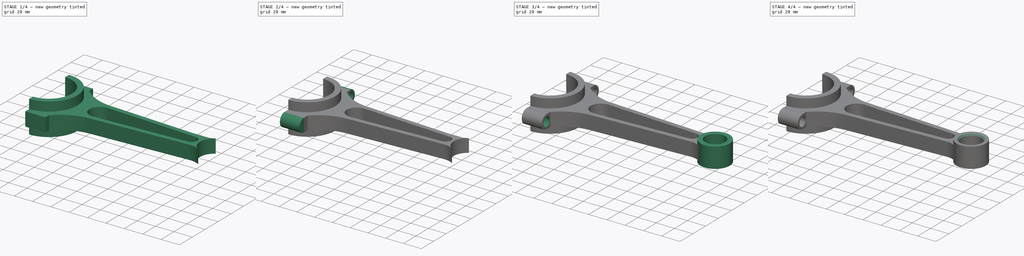
[diagram: build sequence overview — one tinted view per stage of 4, left to right]
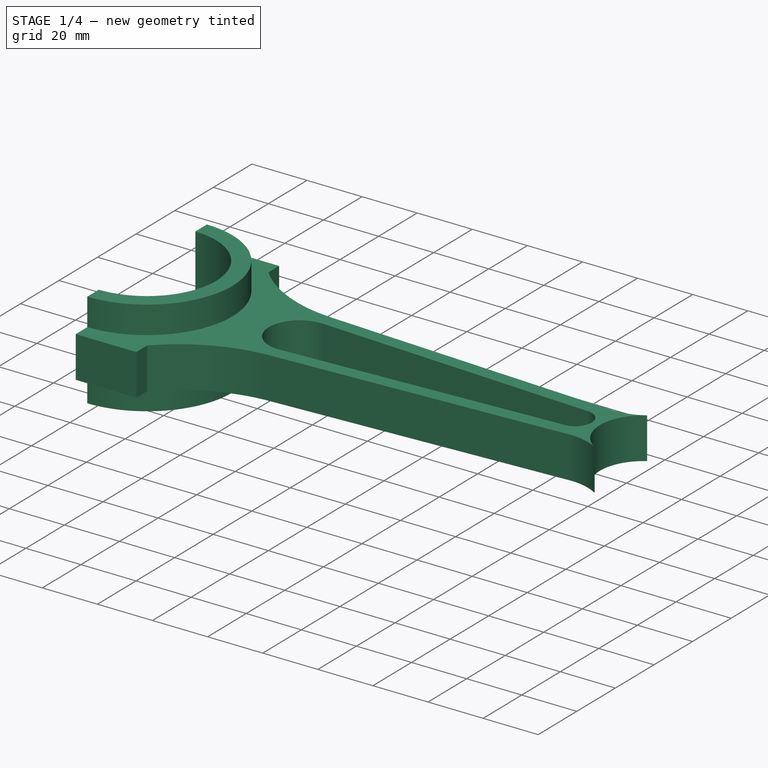
[diagram: stage 1 of 4 — iso view after this stage's code; geometry added in this stage tinted green]
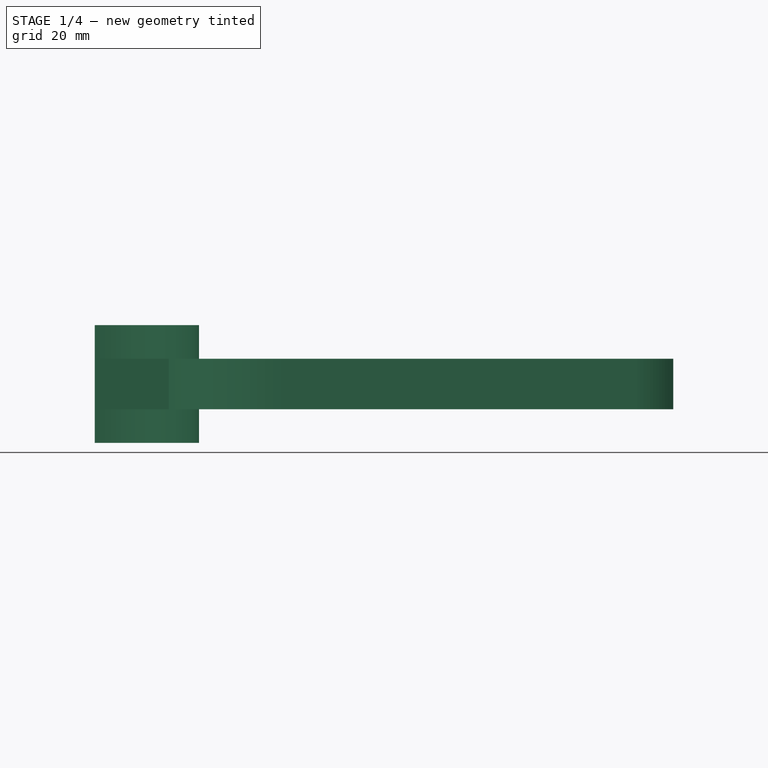
[diagram: stage 1 of 4 — front view after this stage's code; geometry added in this stage tinted green]
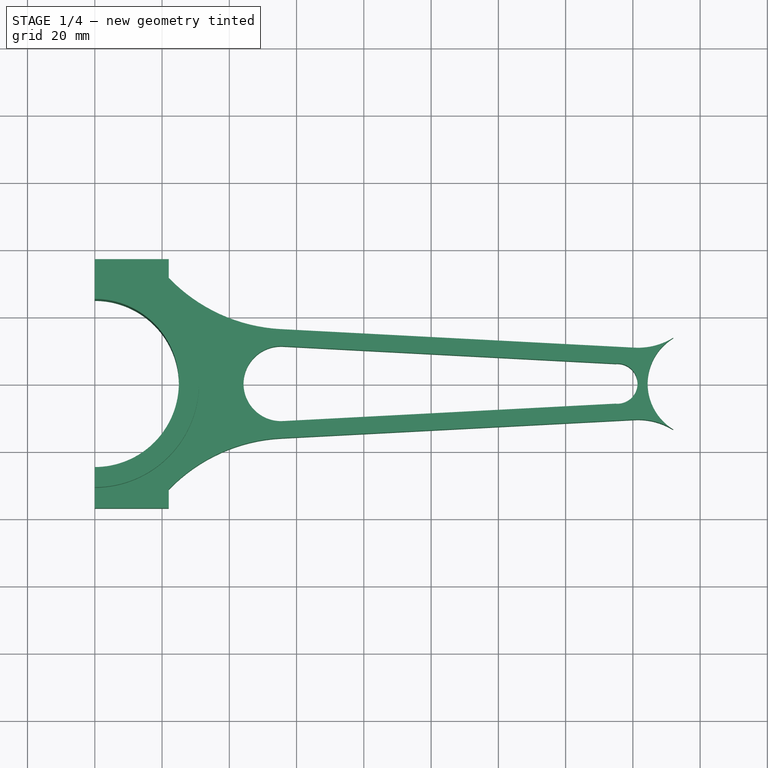
[diagram: stage 1 of 4 — top view after this stage's code; geometry added in this stage tinted green]
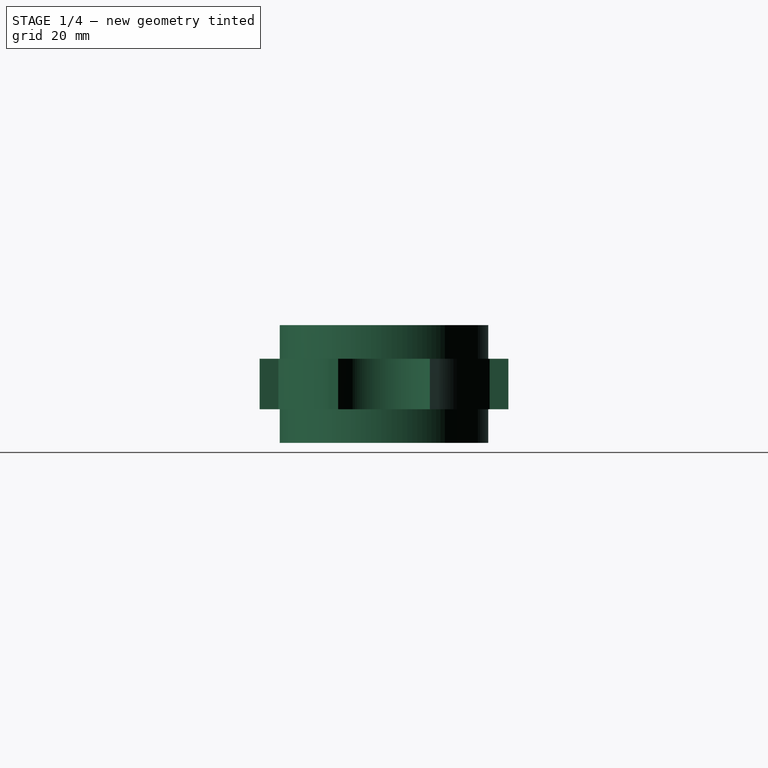
[diagram: stage 1 of 4 — right view after this stage's code; geometry added in this stage tinted green]
FCSTD DOCUMENT  (FreeCAD 0.18R4 (GitTag))
Label: ConnectingRod
License: All rights reserved
LicenseURL: http://en.wikipedia.org/wiki/All_rights_reserved
objects: Sketcher::SketchObject×7, PartDesign::Pad×4, PartDesign::Pocket×2, PartDesign::Chamfer×2, PartDesign::PolarPattern×1, PartDesign::Body×1
note: 23 computed .brp shape members not serialized (recipe doc carries the construction recipe); baked Part::Feature solids carry a one-line shape summary decoded from their .brp

FEATURE [Sketcher::SketchObject] CopySketch
  sketch-geometry (18):
    g0: LineSegment StartX=4.56e-14 StartY=31 StartZ=0 EndX=4.56e-14 EndY=37 EndZ=0
    g1: LineSegment StartX=4.56e-14 StartY=37 StartZ=0 EndX=22 EndY=37 EndZ=0
    g2: LineSegment StartX=22 StartY=37 StartZ=0 EndX=22 EndY=31.4213 EndZ=0
    g3: ArcOfCircle CenterX=58 CenterY=66.12 CenterZ=0 NormalX=0 NormalY=0 NormalZ=1 AngleXU=0 Radius=50 StartAngle=3.90859 EndAngle=4.66003
    g4: LineSegment StartX=4.56e-14 StartY=-31 StartZ=0 EndX=4.56e-14 EndY=-37 EndZ=0
    g5: LineSegment StartX=4.56e-14 StartY=-37 StartZ=0 EndX=22 EndY=-37 EndZ=0
    g6: LineSegment StartX=22 StartY=-37 StartZ=0 EndX=22 EndY=-31.4213 EndZ=0
    g7: ArcOfCircle CenterX=58 CenterY=-66.12 CenterZ=0 NormalX=0 NormalY=0 NormalZ=1 AngleXU=0 Radius=50 StartAngle=1.62316 EndAngle=2.3746
    g8: LineSegment StartX=55.3832 StartY=16.1885 StartZ=0 EndX=160.46 EndY=10.6817 EndZ=0
    g9: LineSegment StartX=55.3832 StartY=-16.1885 StartZ=0 EndX=160.46 EndY=-10.6817 EndZ=0
    g10: ArcOfCircle CenterX=180.383 CenterY=0 CenterZ=0 NormalX=0 NormalY=0 NormalZ=1 AngleXU=0 Radius=16 StartAngle=2.12274 EndAngle=4.16045
    g11: ArcOfCircle CenterX=161.507 CenterY=30.6543 CenterZ=0 NormalX=0 NormalY=0 NormalZ=1 AngleXU=0 Radius=20 StartAngle=4.66003 EndAngle=5.26433
    g12: ArcOfCircle CenterX=161.507 CenterY=-30.6543 CenterZ=0 NormalX=0 NormalY=0 NormalZ=1 AngleXU=0 Radius=20 StartAngle=1.01885 EndAngle=1.62316
    g13: ArcOfCircle CenterX=4.56e-14 CenterY=0 CenterZ=0 NormalX=0 NormalY=0 NormalZ=1 AngleXU=0 Radius=31 StartAngle=4.71239 EndAngle=7.85398
    g14: ArcOfCircle CenterX=155.383 CenterY=0 CenterZ=0 NormalX=0 NormalY=0 NormalZ=1 AngleXU=0 Radius=6 StartAngle=4.61488 EndAngle=7.95149
    g15: LineSegment StartX=55.9676 StartY=11.151 StartZ=0 EndX=154.799 EndY=5.9715 EndZ=0
    g16: LineSegment StartX=55.9676 StartY=-11.151 StartZ=0 EndX=154.799 EndY=-5.9715 EndZ=0
    g17: ArcOfCircle CenterX=55.3832 CenterY=0 CenterZ=0 NormalX=0 NormalY=0 NormalZ=1 AngleXU=0 Radius=11.1663 StartAngle=1.51844 EndAngle=4.76475
  constraints (55):
    c: Coincident(g0,g1)
    c: Coincident(g1,g2)
    c: Vertical(g0)
    c: Horizontal(g1)
    c: Distance(g0) = 6
    c: Radius(g3) = 50
    c: Coincident(g3,g2)
    c: DistanceY(g-1,g3) = 66.12
    c: DistanceX(g1,g1) = 22
    c: Coincident(g4,g5)
    c: Coincident(g5,g6)
    c: Vertical(g4)
    c: Vertical(g6)
    c: Horizontal(g5)
    c: DistanceY(g4,g4) = 6
    c: DistanceX(g5,g5) = 22
    c: Coincident(g7,g6)
    c: Symmetric(g3,g7,g-1)
    c: Angle(g8,g-1) = 0.0523599
    c: Tangent(g8,g3) = -1.5708
    c: Tangent(g7,g9) = 1.5708
    c: Symmetric(g7,g3,g-1)
    c: Radius(g10) = 16
    c: DistanceX(g3,g10) = 125
    c: PointOnObject(g10,g-1)
    c: Radius(g11) = 20
    c: Tangent(g11,g10)
    c: Tangent(g8,g11) = -1.5708
    c: Vertical(g9,g8)
    c: Tangent(g12,g10)
    c: Tangent(g12,g9) = 1.5708
    c: Coincident(g10,g11)
    c: Coincident(g10,g12)
    c: Vertical(g13,g13)
    c: Vertical(g13,g13)
    c: Radius(g13) = 31
    c: PointOnObject(g13,g-1)
    c: Coincident(g13,g0)
    c: Coincident(g13,g4)
    c: DistanceX(g0,g3) = 58
    c: Vertical(g2)
    c: PointOnObject(g13,g-2)
    c: DistanceX(g7,g14) = 100
    c: Radius(g14) = 6
    c: PointOnObject(g14,g-1)
    c: Parallel(g15,g8)
    c: Distance(g15,g8) = 5
    c: Coincident(g15,g14)
    c: Parallel(g16,g9)
    c: Coincident(g16,g14)
    c: Distance(g14,g9) = 5
    c: PointOnObject(g17,g-1)
    c: Vertical(g17,g3)
    c: Tangent(g15,g17) = 1.5708
    c: Coincident(g16,g17)
FEATURE [PartDesign::Pad] Pad
  Length = 15
  Length2 = 100
  Midplane = true
  Profile = -> CopySketch
  Type = 0
FEATURE [Sketcher::SketchObject] Sketch001
  MapMode = 5
  Support = -> [XY_Plane]
  sketch-geometry (4):
    g0: ArcOfCircle CenterX=-4.6e-15 CenterY=0 CenterZ=0 NormalX=0 NormalY=0 NormalZ=1 AngleXU=0 Radius=25 StartAngle=4.71239 EndAngle=7.85398
    g1: ArcOfCircle CenterX=-4.6e-15 CenterY=0 CenterZ=0 NormalX=0 NormalY=0 NormalZ=1 AngleXU=0 Radius=31 StartAngle=4.71239 EndAngle=7.85398
    g2: LineSegment StartX=-4.6e-15 StartY=31 StartZ=0 EndX=-4.6e-15 EndY=25 EndZ=0
    g3: LineSegment StartX=-4.6e-15 StartY=-25 StartZ=0 EndX=-4.6e-15 EndY=-31 EndZ=0
  constraints (12):
    c: Vertical(g0,g0)
    c: Vertical(g0,g0)
    c: Vertical(g1,g1)
    c: Vertical(g1,g1)
    c: Radius(g1) = 31
    c: Radius(g0) = 25
    c: Coincident(g1,g0)
    c: Coincident(g0,g2)
    c: Coincident(g2,g1)
    c: Coincident(g3,g0)
    c: Coincident(g3,g1)
    c: Coincident(g0,g-1)
FEATURE [PartDesign::Pad] Pad001
  BaseFeature = -> Pad
  Length = 35
  Length2 = 100
  Midplane = true
  Profile = -> Sketch001
  Type = 0
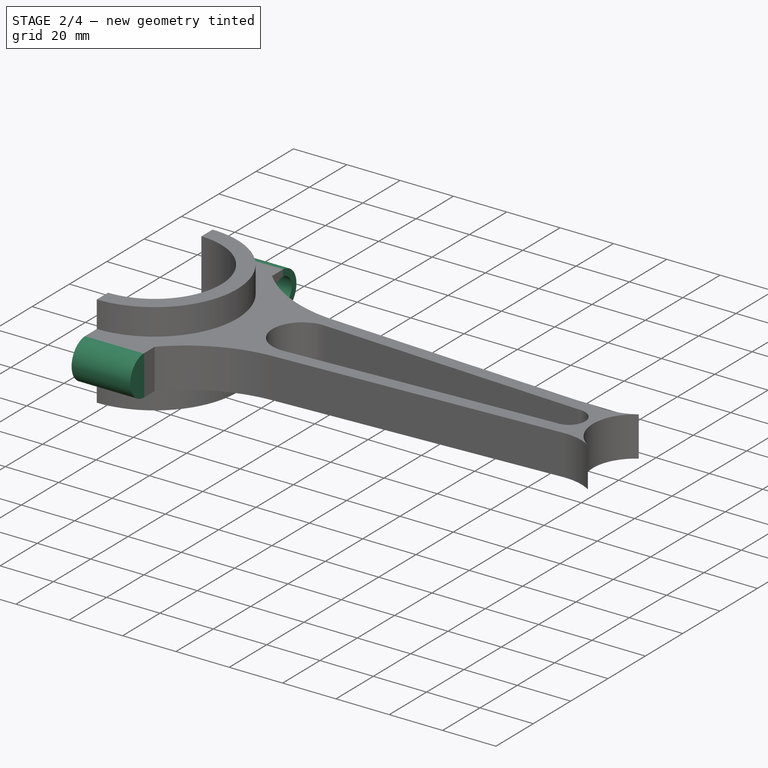
[diagram: stage 2 of 4 — iso view after this stage's code; geometry added in this stage tinted green]
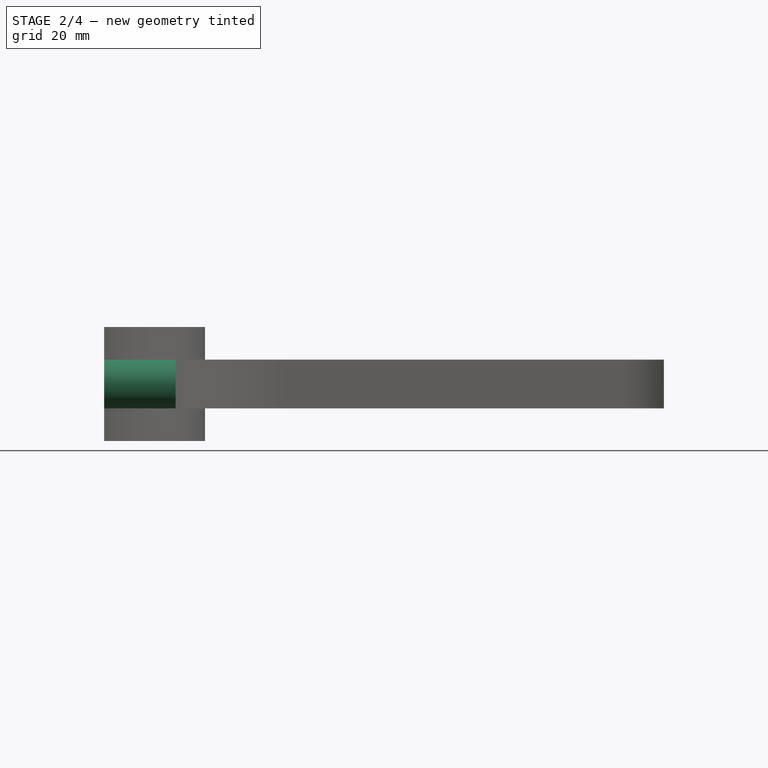
[diagram: stage 2 of 4 — front view after this stage's code; geometry added in this stage tinted green]
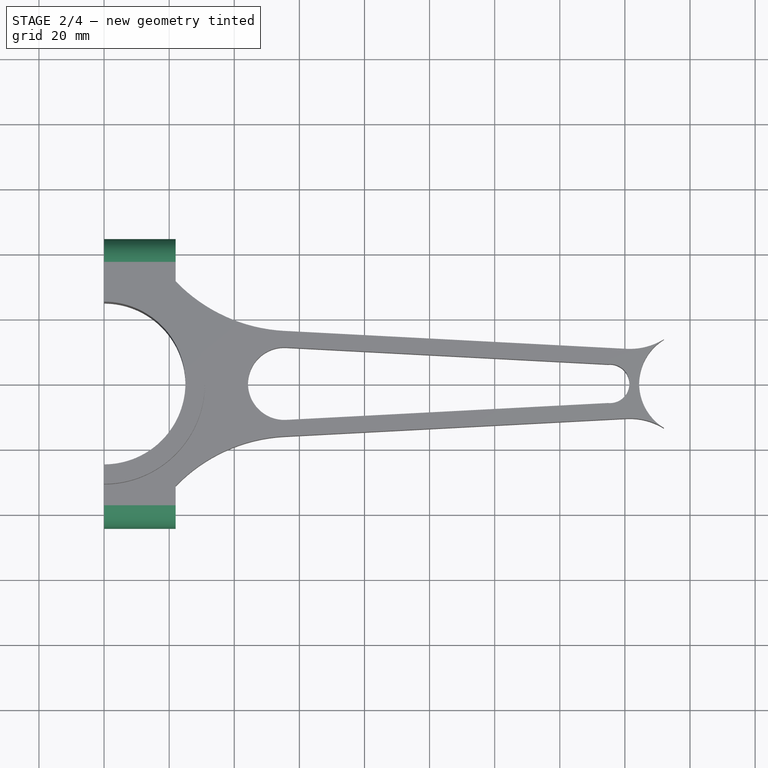
[diagram: stage 2 of 4 — top view after this stage's code; geometry added in this stage tinted green]
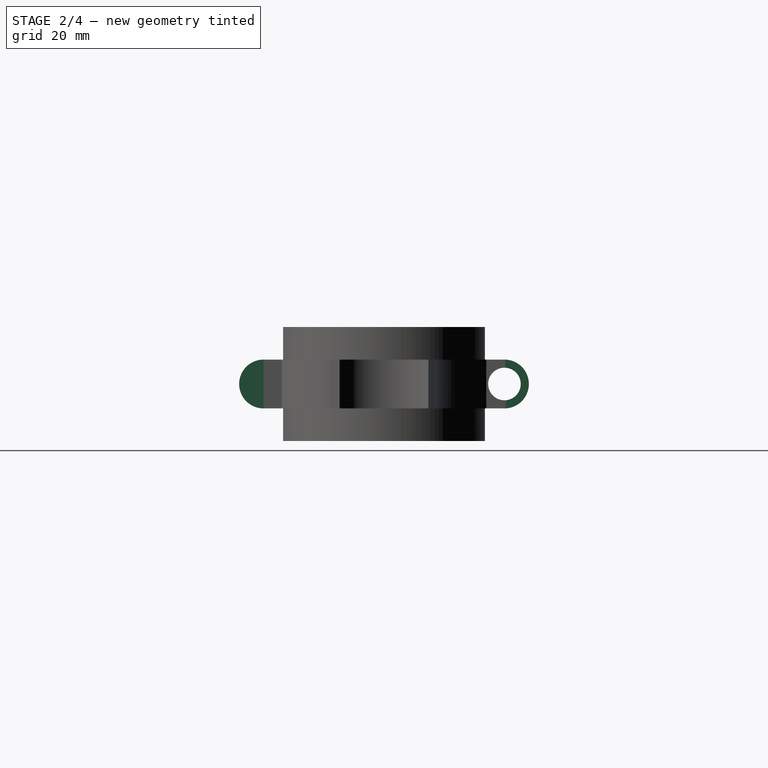
[diagram: stage 2 of 4 — right view after this stage's code; geometry added in this stage tinted green]
FEATURE [Sketcher::SketchObject] Sketch002
  MapMode = 5
  Support = -> [XY_Plane]
FEATURE [Sketcher::SketchObject] Sketch003
  MapMode = 5
  Placement = pos=(0,0,0) rot=(0.57735,0.57735,0.57735;2.0944rad)
  Support = -> [YZ_Plane]
  sketch-geometry (4):
    g0: ArcOfCircle CenterX=37 CenterY=0 CenterZ=0 NormalX=0 NormalY=0 NormalZ=1 AngleXU=0 Radius=7.5 StartAngle=4.71239 EndAngle=7.85398
    g1: LineSegment StartX=37 StartY=7.5 StartZ=0 EndX=37 EndY=-7.5 EndZ=0
    g2: ArcOfCircle CenterX=-37 CenterY=1.8e-15 CenterZ=0 NormalX=0 NormalY=0 NormalZ=1 AngleXU=0 Radius=7.5 StartAngle=1.5708 EndAngle=4.71239
    g3: LineSegment StartX=-37 StartY=7.5 StartZ=0 EndX=-37 EndY=-7.5 EndZ=0
  constraints (14):
    c: Vertical(g0,g0)
    c: Vertical(g0,g0)
    c: Coincident(g1,g0)
    c: Coincident(g1,g0)
    c: DistanceX(g-1,g0) = 37
    c: PointOnObject(g0,g-1)
    c: Radius(g0) = 7.5
    c: Vertical(g2,g2)
    c: Vertical(g2,g2)
    c: Coincident(g3,g2)
    c: Coincident(g3,g2)
    c: Radius(g2) = 7.5
    c: DistanceX(g2,g-1) = 37
    c: PointOnObject(g2,g-1)
FEATURE [PartDesign::Pad] Pad002
  BaseFeature = -> Pad001
  Length = 22
  Length2 = 100
  Profile = -> Sketch003
  Type = 0
FEATURE [Sketcher::SketchObject] Sketch
  MapMode = 5
  Placement = pos=(0,0,0) rot=(-0.57735,0.57735,0.57735;4.18879rad)
  Support = -> [Pad002]
  sketch-geometry (1):
    g0: Circle CenterX=-37 CenterY=0 CenterZ=0 NormalX=0 NormalY=0 NormalZ=1 AngleXU=0 Radius=5
  constraints (3):
    c: Radius(g0) = 5
    c: PointOnObject(g0,g-1)
    c: DistanceX(g0,g-1) = 37
FEATURE [PartDesign::Pocket] Pocket
  BaseFeature = -> Pad002
  Length = 22
  Length2 = 100
  Profile = -> Sketch
  Type = 0
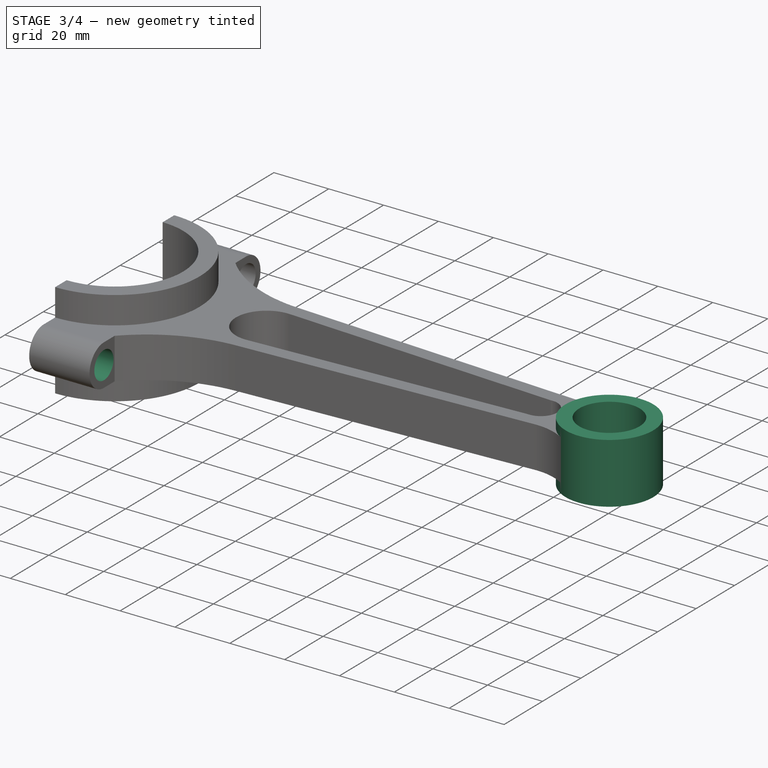
[diagram: stage 3 of 4 — iso view after this stage's code; geometry added in this stage tinted green]
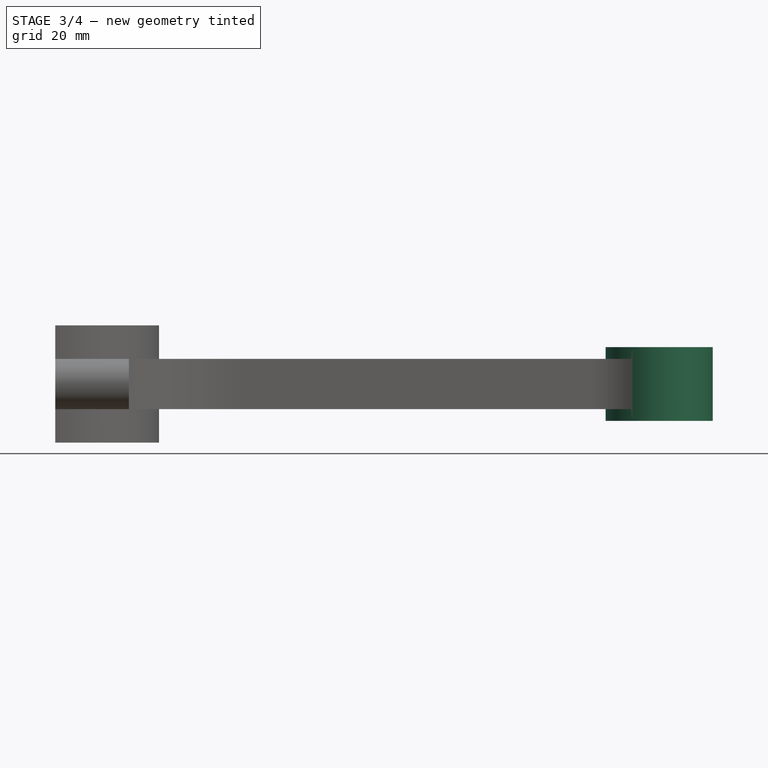
[diagram: stage 3 of 4 — front view after this stage's code; geometry added in this stage tinted green]
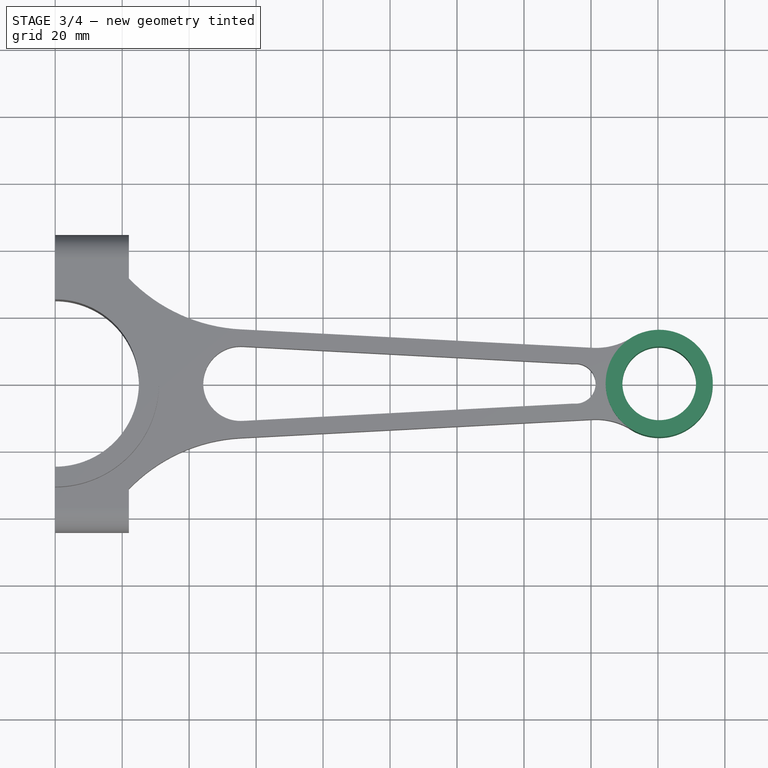
[diagram: stage 3 of 4 — top view after this stage's code; geometry added in this stage tinted green]
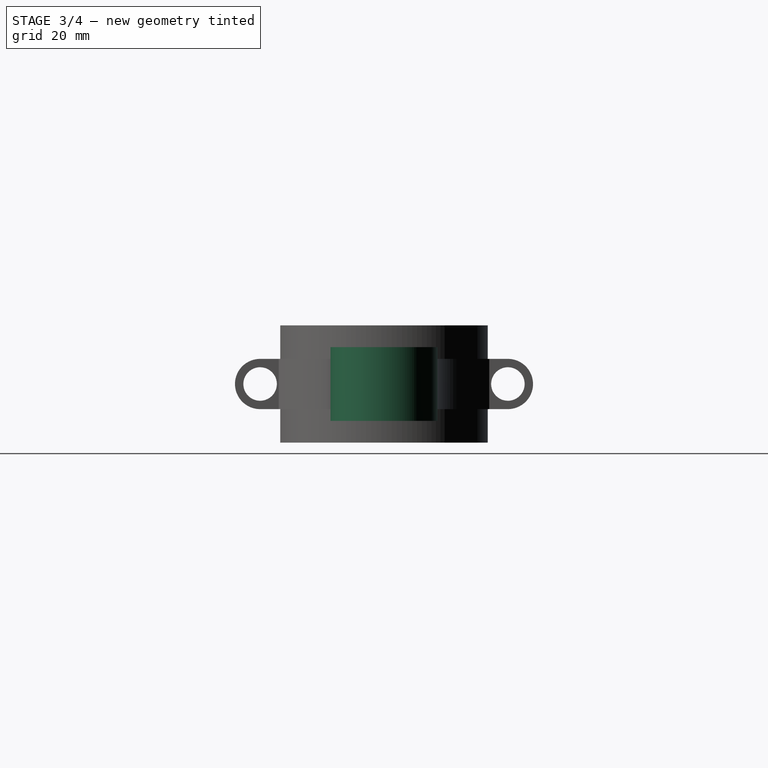
[diagram: stage 3 of 4 — right view after this stage's code; geometry added in this stage tinted green]
FEATURE [PartDesign::PolarPattern] PolarPattern
  Angle = 360
  Axis = -> Sketch [N_Axis]
  BaseFeature = -> Pocket
  Occurrences = 2
  Originals = -> [Pocket]
FEATURE [Sketcher::SketchObject] Sketch004
  MapMode = 5
  Support = -> [XY_Plane]
  sketch-geometry (1):
    g0: Circle CenterX=180.383 CenterY=0 CenterZ=0 NormalX=0 NormalY=0 NormalZ=1 AngleXU=0 Radius=16
  constraints (3):
    c: Radius(g0) = 16
    c: DistanceX(g-1,g0) = 180.383
    c: PointOnObject(g0,g-1)
FEATURE [PartDesign::Pad] Pad003
  BaseFeature = -> PolarPattern
  Length = 22
  Length2 = 100
  Midplane = true
  Profile = -> Sketch004
  Type = 0
FEATURE [Sketcher::SketchObject] Sketch005
  MapMode = 5
  Placement = pos=(0,0,11) rot=(0,0,1;0rad)
  Support = -> [Pad003]
  sketch-geometry (1):
    g0: Circle CenterX=180.383 CenterY=0 CenterZ=0 NormalX=0 NormalY=0 NormalZ=1 AngleXU=0 Radius=11
  constraints (3):
    c: Radius(g0) = 11
    c: DistanceX(g-1,g0) = 180.383
    c: PointOnObject(g0,g-1)
FEATURE [PartDesign::Pocket] Pocket001
  BaseFeature = -> Pad003
  Length = 22
  Length2 = 100
  Profile = -> Sketch005
  Type = 0
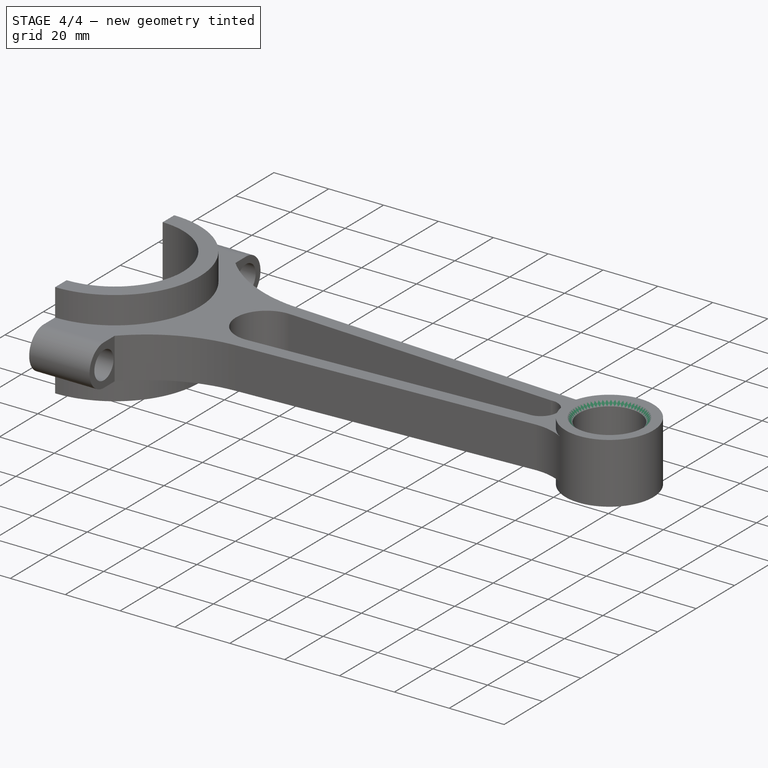
[diagram: stage 4 of 4 — iso view after this stage's code; geometry added in this stage tinted green]
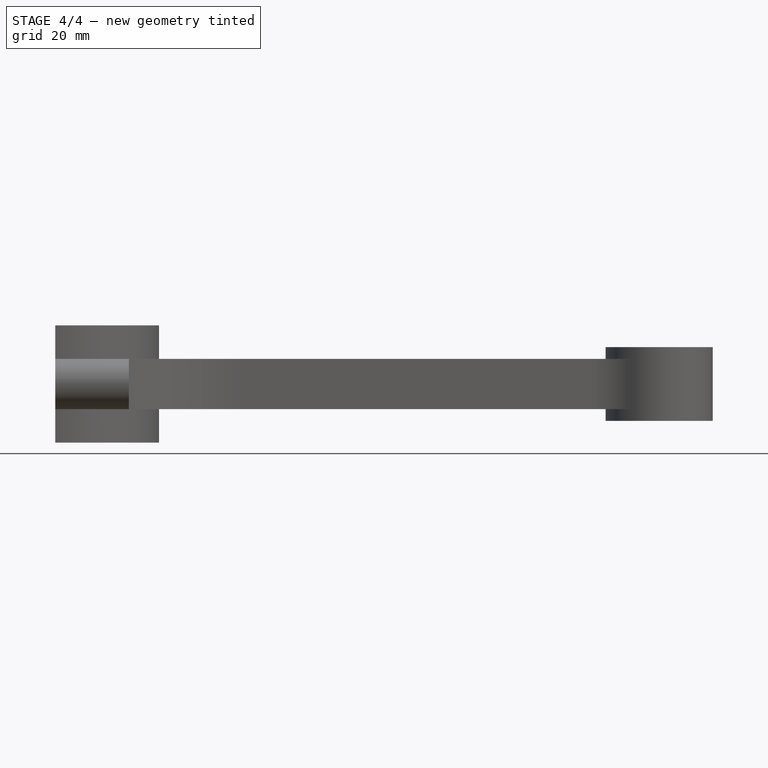
[diagram: stage 4 of 4 — front view after this stage's code; geometry added in this stage tinted green]
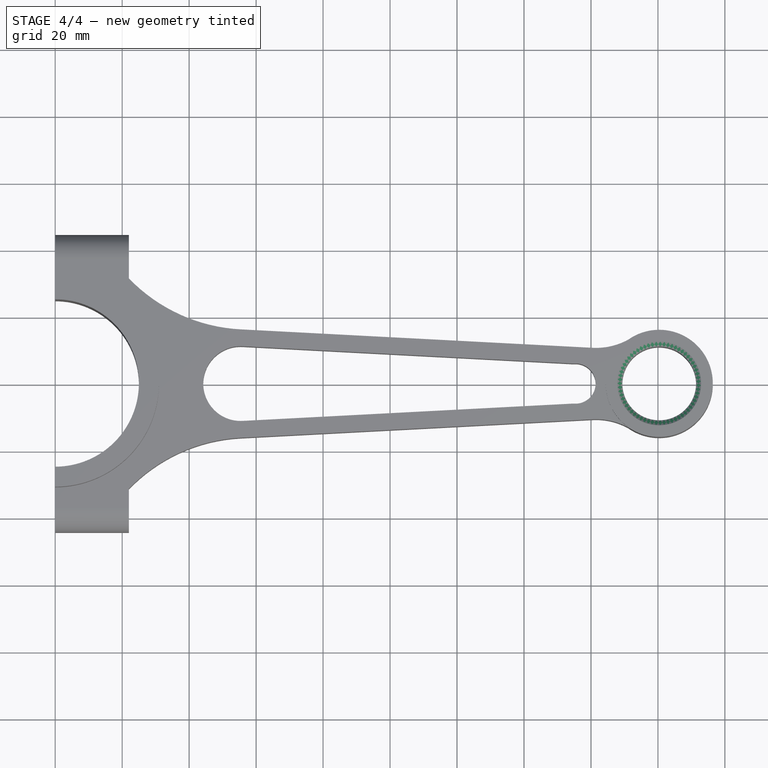
[diagram: stage 4 of 4 — top view after this stage's code; geometry added in this stage tinted green]
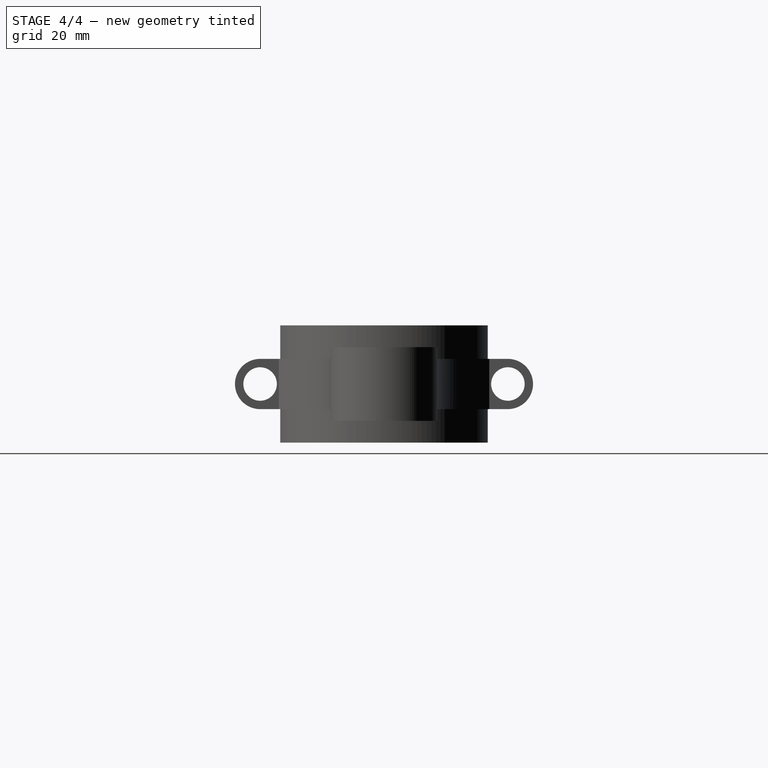
[diagram: stage 4 of 4 — right view after this stage's code; geometry added in this stage tinted green]
FEATURE [PartDesign::Chamfer] Chamfer
  Base = -> Pocket001 [Edge9]
  BaseFeature = -> Pocket001
  Size = 1.5
FEATURE [PartDesign::Chamfer] Chamfer001
  Base = -> Chamfer [Edge12]
  BaseFeature = -> Chamfer
  Size = 1.5
FEATURE [PartDesign::Body] Body
  Group = -> [Pad,Sketch001,Pad001,Sketch002,Sketch003,Pad002,Sketch,Pocket,PolarPattern,Sketch004,Pad003,Sketch005,Pocket001,Chamfer,Chamfer001]
  Origin = -> Origin
  Tip = -> Chamfer001
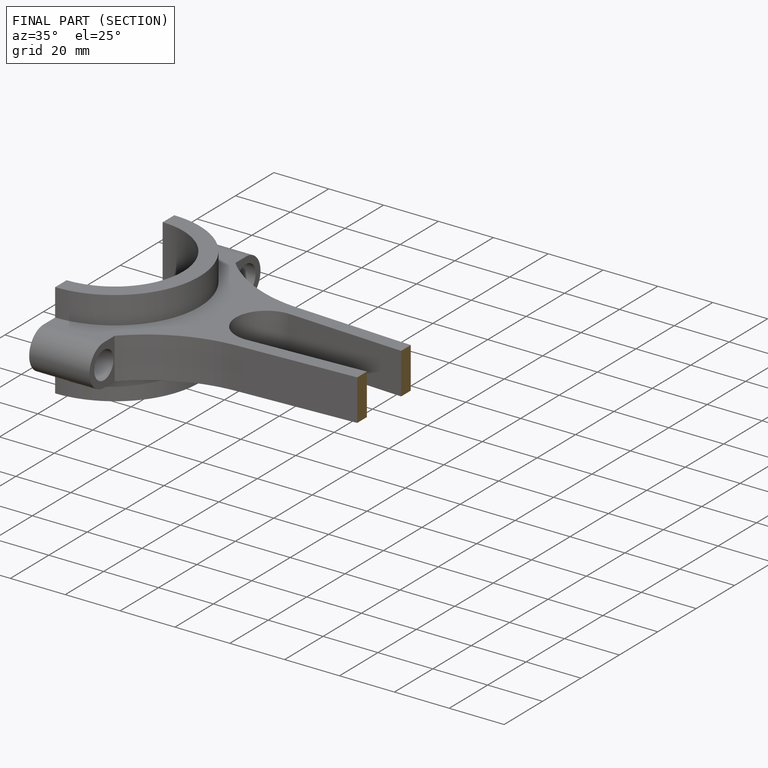
[diagram: finished part — half-section view (interior)]
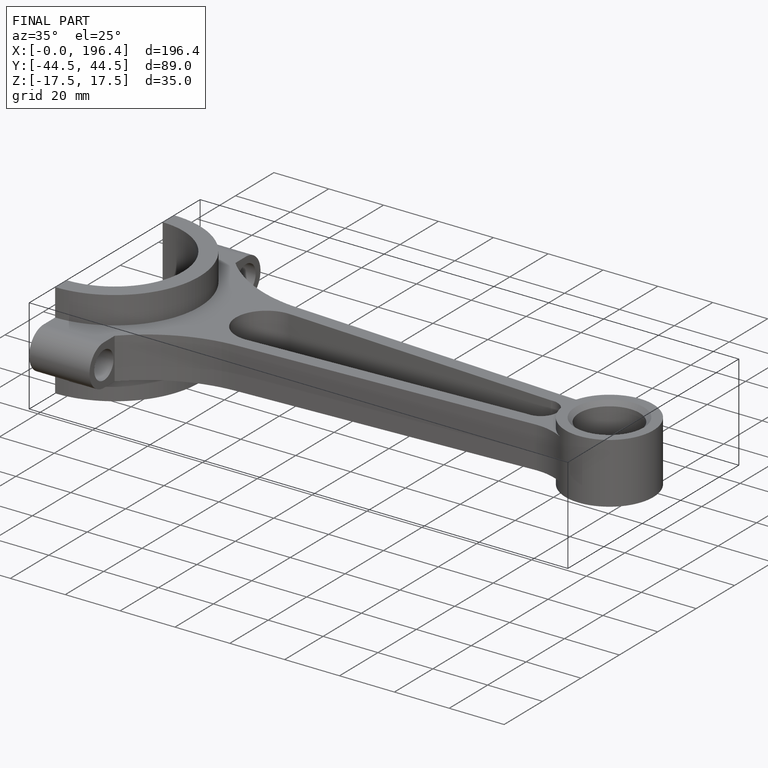
[diagram: finished part — iso view with bounding-box wireframe]
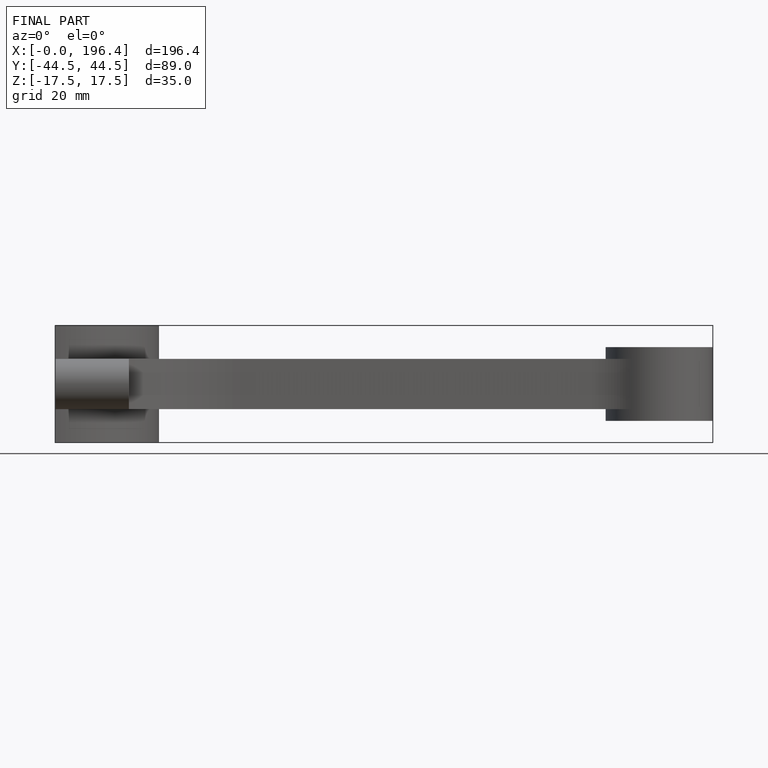
[diagram: finished part — front view with bounding-box wireframe]
